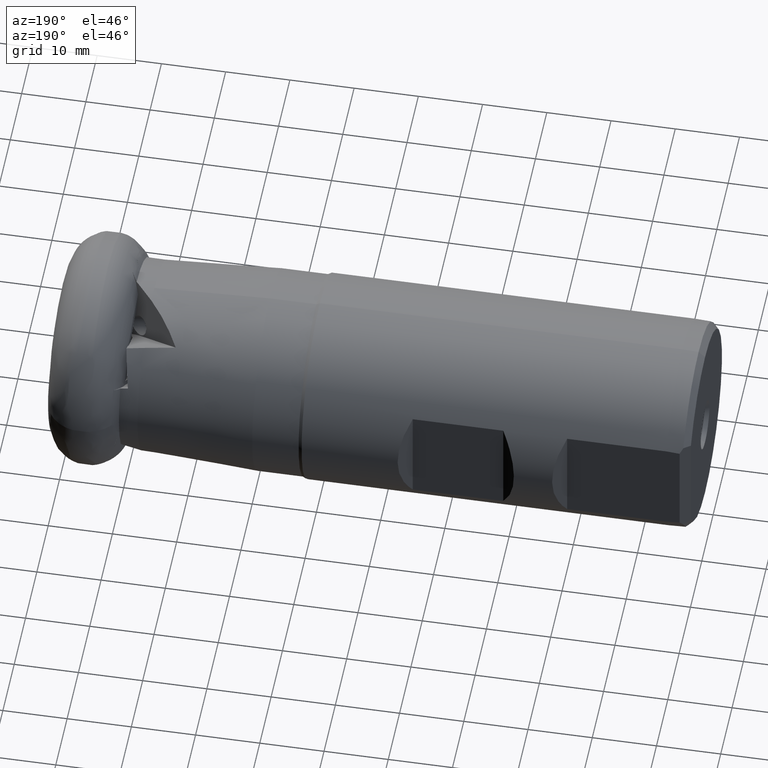
[diagram: clean part render]
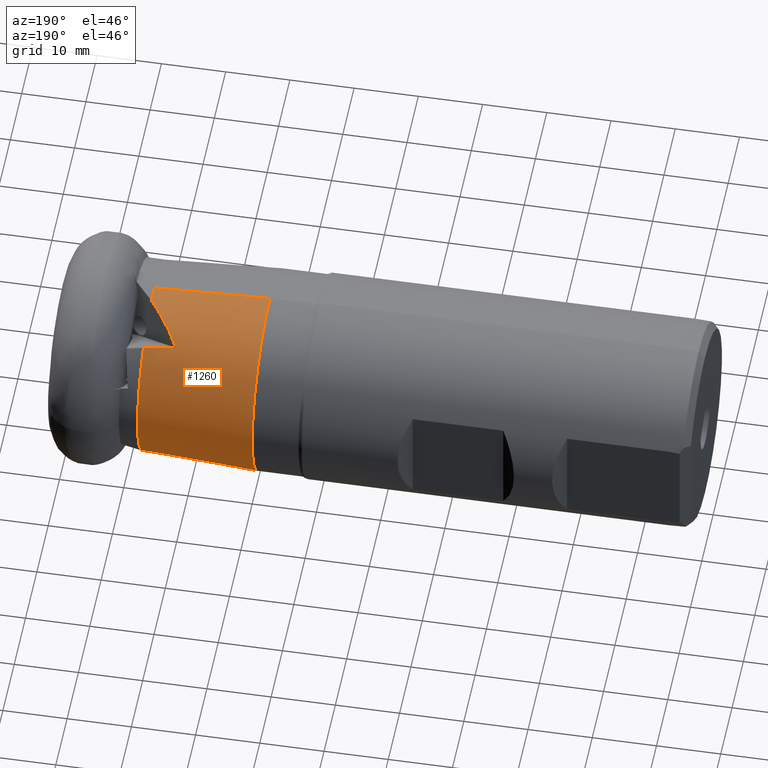
[diagram: same view with one face highlighted and labeled with its STEP entity id]
A machine part, auxiliary view. The second image highlights one B-rep face of the part: STEP entity #1260.
In plain terms, the highlighted conical surface has half-angle 2.862 deg.
Its self-contained STEP definition (entity closure, byte-faithful):
#128 = EDGE_CURVE ( 'NONE', #966, #622, #3689, .T. ) ;
#153 = DIRECTION ( 'NONE',  ( 1.000000000000000000, -0.0000000000000000000, -0.0000000000000000000 ) ) ;
#258 = CARTESIAN_POINT ( 'NONE',  ( -17.95567234931429800, 5.685919164354633200, -13.93219706487451700 ) ) ;
#277 = VECTOR ( 'NONE', #1961, 1000.000000000000200 ) ;
#390 = CARTESIAN_POINT ( 'NONE',  ( -13.00000000000000000, 0.0000000000000000000, 0.0000000000000000000 ) ) ;
#424 = VERTEX_POINT ( 'NONE', #2324 ) ;
#477 = CARTESIAN_POINT ( 'NONE',  ( -13.00000000000000000, 0.0000000000000000000, 14.80000000000000100 ) ) ;
#594 = ORIENTED_EDGE ( 'NONE', *, *, #1085, .T. ) ;
#622 = VERTEX_POINT ( 'NONE', #4890 ) ;
#644 = ORIENTED_EDGE ( 'NONE', *, *, #2697, .F. ) ;
#778 = CARTESIAN_POINT ( 'NONE',  ( -31.00000000000000000, 1.922695474661343500E-015, -15.69999999999999600 ) ) ;
#852 = CIRCLE ( 'NONE', #2750, 14.80000000000000100 ) ;
#919 = CARTESIAN_POINT ( 'NONE',  ( -16.71906360454940100, 7.926515436117495200, -12.95099788587356400 ) ) ;
#966 = VERTEX_POINT ( 'NONE', #2911 ) ;
#1024 = EDGE_CURVE ( 'NONE', #1798, #5436, #5696, .T. ) ;
#1081 = DIRECTION ( 'NONE',  ( 0.0000000000000000000, 0.0000000000000000000, -1.000000000000000000 ) ) ;
#1085 = EDGE_CURVE ( 'NONE', #3980, #5436, #2599, .T. ) ;
#1161 = CARTESIAN_POINT ( 'NONE',  ( -16.30401540162769100, 5.453793918284754100, -13.93773506917106500 ) ) ;
#1237 = CARTESIAN_POINT ( 'NONE',  ( -12.99999999999999800, 9.572136335375722300, 11.28779012814199400 ) ) ;
#1240 = CIRCLE ( 'NONE', #5959, 14.80000000000000100 ) ;
#1260 = ADVANCED_FACE ( 'NONE', ( #3521 ), #3655, .T. ) ;
#1263 = DIRECTION ( 'NONE',  ( -1.000000000000000000, 0.0000000000000000000, 0.0000000000000000000 ) ) ;
#1277 = ORIENTED_EDGE ( 'NONE', *, *, #5240, .F. ) ;
#1322 = ORIENTED_EDGE ( 'NONE', *, *, #128, .T. ) ;
#1365 = CARTESIAN_POINT ( 'NONE',  ( -12.99999999999999800, 11.34567367723410000, -9.503456676900107400 ) ) ;
#1494 = CARTESIAN_POINT ( 'NONE',  ( -12.99999999999999800, 2.557398067343425100, 14.57736996598316800 ) ) ;
#1674 = EDGE_CURVE ( 'NONE', #966, #1798, #852, .T. ) ;
#1784 = CARTESIAN_POINT ( 'NONE',  ( -13.00000000000000000, 1.812477262738082500E-015, -14.80000000000000100 ) ) ;
#1798 = VERTEX_POINT ( 'NONE', #477 ) ;
#1803 = CARTESIAN_POINT ( 'NONE',  ( -31.00000000000000000, 0.0000000000000000000, 15.69999999999999600 ) ) ;
#1815 = CARTESIAN_POINT ( 'NONE',  ( -14.65182424898353600, 9.460043306093826500, 11.49113548420580100 ) ) ;
#1873 = CARTESIAN_POINT ( 'NONE',  ( -13.00000000000000000, 0.0000000000000000000, 14.80000000000000100 ) ) ;
#1961 = DIRECTION ( 'NONE',  ( -0.9987523388778446500, 0.0000000000000000000, 0.04993761694389192700 ) ) ;
#2056 = ORIENTED_EDGE ( 'NONE', *, *, #1024, .F. ) ;
#2174 = AXIS2_PLACEMENT_3D ( 'NONE', #6041, #3678, #2305 ) ;
#2179 = VERTEX_POINT ( 'NONE', #3471 ) ;
#2305 = DIRECTION ( 'NONE',  ( 0.0000000000000000000, 0.0000000000000000000, -1.000000000000000000 ) ) ;
#2324 = CARTESIAN_POINT ( 'NONE',  ( -12.99999999999999800, 4.989444835870438400, -13.93360829899440900 ) ) ;
#2367 = EDGE_CURVE ( 'NONE', #2179, #2458, #2824, .T. ) ;
#2458 = VERTEX_POINT ( 'NONE', #2864 ) ;
#2459 = CARTESIAN_POINT ( 'NONE',  ( -13.00000000000000000, 0.0000000000000000000, 0.0000000000000000000 ) ) ;
#2568 = CARTESIAN_POINT ( 'NONE',  ( -14.65182424898358300, 5.221593594604243500, -13.93820556608108400 ) ) ;
#2581 = EDGE_LOOP ( 'NONE', ( #2902, #4577, #594, #2056, #5048, #1322, #5229, #644, #5211, #1277 ) ) ;
#2599 = CIRCLE ( 'NONE', #3903, 15.69999999999999600 ) ;
#2611 = CARTESIAN_POINT ( 'NONE',  ( -13.00000000000000000, 0.0000000000000000000, 0.0000000000000000000 ) ) ;
#2647 =( BOUNDED_CURVE ( )  B_SPLINE_CURVE ( 3, ( #3154, #1815, #5050, #5031 ),
 .UNSPECIFIED., .F., .T. ) 
 B_SPLINE_CURVE_WITH_KNOTS ( ( 4, 4 ),
 ( 4.691202703983159400, 4.737911458930065900 ),
 .UNSPECIFIED. ) 
 CURVE ( )  GEOMETRIC_REPRESENTATION_ITEM ( )  RATIONAL_B_SPLINE_CURVE ( ( 1.000000000000000000, 0.9998181992810854000, 0.9998181992810854000, 1.000000000000000000 ) ) 
 REPRESENTATION_ITEM ( '' )  );
#2653 = DIRECTION ( 'NONE',  ( 0.0000000000000000000, 0.0000000000000000000, 1.000000000000000000 ) ) ;
#2670 = DIRECTION ( 'NONE',  ( -0.9987523388778446500, 6.115594274738387700E-018, -0.04993761694389192700 ) ) ;
#2697 = EDGE_CURVE ( 'NONE', #2179, #3431, #1240, .T. ) ;
#2750 = AXIS2_PLACEMENT_3D ( 'NONE', #2459, #153, #3381 ) ;
#2799 = EDGE_CURVE ( 'NONE', #4942, #424, #3918, .T. ) ;
#2824 =( BOUNDED_CURVE ( )  B_SPLINE_CURVE ( 3, ( #1365, #6050, #919, #5644 ),
 .UNSPECIFIED., .F., .T. ) 
 B_SPLINE_CURVE_WITH_KNOTS ( ( 4, 4 ),
 ( 5.220102732986152500, 5.722422457248620200 ),
 .UNSPECIFIED. ) 
 CURVE ( )  GEOMETRIC_REPRESENTATION_ITEM ( )  RATIONAL_B_SPLINE_CURVE ( ( 1.000000000000000000, 0.9790832103748463600, 0.9790832103748463600, 1.000000000000000000 ) ) 
 REPRESENTATION_ITEM ( '' )  );
#2864 = CARTESIAN_POINT ( 'NONE',  ( -17.95567234931429800, 5.685919164354633200, -13.93219706487451700 ) ) ;
#2902 = ORIENTED_EDGE ( 'NONE', *, *, #2799, .F. ) ;
#2911 = CARTESIAN_POINT ( 'NONE',  ( -12.99999999999999800, 2.557398067343425100, 14.57736996598316800 ) ) ;
#3006 = CARTESIAN_POINT ( 'NONE',  ( -12.99999999999999800, 4.989444835870438400, -13.93360829899440900 ) ) ;
#3154 = CARTESIAN_POINT ( 'NONE',  ( -12.99999999999999800, 9.572136335375722300, 11.28779012814199400 ) ) ;
#3157 = VECTOR ( 'NONE', #2670, 1000.000000000000200 ) ;
#3326 = CARTESIAN_POINT ( 'NONE',  ( -13.00000000000000000, 1.867586368699713400E-015, -14.80000000000000100 ) ) ;
#3381 = DIRECTION ( 'NONE',  ( 0.0000000000000000000, 0.0000000000000000000, -1.000000000000000000 ) ) ;
#3418 = CARTESIAN_POINT ( 'NONE',  ( -15.03188240728190600, 4.983410916781314100, 14.25490524140779600 ) ) ;
#3431 = VERTEX_POINT ( 'NONE', #1237 ) ;
#3471 = CARTESIAN_POINT ( 'NONE',  ( -12.99999999999999800, 11.34567367723410000, -9.503456676900107400 ) ) ;
#3477 = EDGE_CURVE ( 'NONE', #3431, #622, #2647, .T. ) ;
#3521 = FACE_OUTER_BOUND ( 'NONE', #2581, .T. ) ;
#3655 = CONICAL_SURFACE ( 'NONE', #5432, 14.80000000000000100, 0.04995839572194246700 ) ;
#3678 = DIRECTION ( 'NONE',  ( 1.000000000000000000, -0.0000000000000000000, -0.0000000000000000000 ) ) ;
#3689 =( BOUNDED_CURVE ( )  B_SPLINE_CURVE ( 3, ( #1494, #3418, #4740, #5256 ),
 .UNSPECIFIED., .F., .F. ) 
 B_SPLINE_CURVE_WITH_KNOTS ( ( 4, 4 ),
 ( 5.220102732986152500, 5.722422457248618400 ),
 .UNSPECIFIED. ) 
 CURVE ( )  GEOMETRIC_REPRESENTATION_ITEM ( )  RATIONAL_B_SPLINE_CURVE ( ( 1.000000000000000000, 0.9790832103748465800, 0.9790832103748465800, 1.000000000000000000 ) ) 
 REPRESENTATION_ITEM ( '' )  );
#3848 = DIRECTION ( 'NONE',  ( 1.000000000000000000, -0.0000000000000000000, -0.0000000000000000000 ) ) ;
#3903 = AXIS2_PLACEMENT_3D ( 'NONE', #5757, #3848, #1081 ) ;
#3918 = CIRCLE ( 'NONE', #2174, 14.80000000000000100 ) ;
#3980 = VERTEX_POINT ( 'NONE', #778 ) ;
#4266 = LINE ( 'NONE', #1784, #3157 ) ;
#4541 = DIRECTION ( 'NONE',  ( 1.000000000000000000, -0.0000000000000000000, -0.0000000000000000000 ) ) ;
#4577 = ORIENTED_EDGE ( 'NONE', *, *, #5342, .T. ) ;
#4740 = CARTESIAN_POINT ( 'NONE',  ( -16.71906360454939700, 7.252635455466428700, 13.34006267410396500 ) ) ;
#4890 = CARTESIAN_POINT ( 'NONE',  ( -17.95567234931424500, 9.222677006535075600, 11.89024897263303900 ) ) ;
#4942 = VERTEX_POINT ( 'NONE', #3326 ) ;
#5031 = CARTESIAN_POINT ( 'NONE',  ( -17.95567234931424500, 9.222677006535075600, 11.89024897263303900 ) ) ;
#5048 = ORIENTED_EDGE ( 'NONE', *, *, #1674, .F. ) ;
#5050 = CARTESIAN_POINT ( 'NONE',  ( -16.30401540162760600, 9.343535681977096300, 11.69199161482507800 ) ) ;
#5058 = DIRECTION ( 'NONE',  ( 0.0000000000000000000, 0.0000000000000000000, -1.000000000000000000 ) ) ;
#5211 = ORIENTED_EDGE ( 'NONE', *, *, #2367, .T. ) ;
#5229 = ORIENTED_EDGE ( 'NONE', *, *, #3477, .F. ) ;
#5240 = EDGE_CURVE ( 'NONE', #424, #2458, #5775, .T. ) ;
#5256 = CARTESIAN_POINT ( 'NONE',  ( -17.95567234931424500, 9.222677006535075600, 11.89024897263303900 ) ) ;
#5342 = EDGE_CURVE ( 'NONE', #4942, #3980, #4266, .T. ) ;
#5432 = AXIS2_PLACEMENT_3D ( 'NONE', #2611, #1263, #2653 ) ;
#5436 = VERTEX_POINT ( 'NONE', #1803 ) ;
#5644 = CARTESIAN_POINT ( 'NONE',  ( -17.95567234931429800, 5.685919164354633200, -13.93219706487451700 ) ) ;
#5696 = LINE ( 'NONE', #1873, #277 ) ;
#5757 = CARTESIAN_POINT ( 'NONE',  ( -31.00000000000000000, 0.0000000000000000000, 0.0000000000000000000 ) ) ;
#5775 =( BOUNDED_CURVE ( )  B_SPLINE_CURVE ( 3, ( #3006, #2568, #1161, #258 ),
 .UNSPECIFIED., .F., .F. ) 
 B_SPLINE_CURVE_WITH_KNOTS ( ( 4, 4 ),
 ( 4.691202703983159400, 4.737911458930066800 ),
 .UNSPECIFIED. ) 
 CURVE ( )  GEOMETRIC_REPRESENTATION_ITEM ( )  RATIONAL_B_SPLINE_CURVE ( ( 1.000000000000000000, 0.9998181992810854000, 0.9998181992810854000, 1.000000000000000000 ) ) 
 REPRESENTATION_ITEM ( '' )  );
#5959 = AXIS2_PLACEMENT_3D ( 'NONE', #390, #4541, #5058 ) ;
#6041 = CARTESIAN_POINT ( 'NONE',  ( -13.00000000000000000, 0.0000000000000000000, 0.0000000000000000000 ) ) ;
#6050 = CARTESIAN_POINT ( 'NONE',  ( -15.03188240728191300, 9.853404609208537200, -11.44321307213312300 ) ) ;